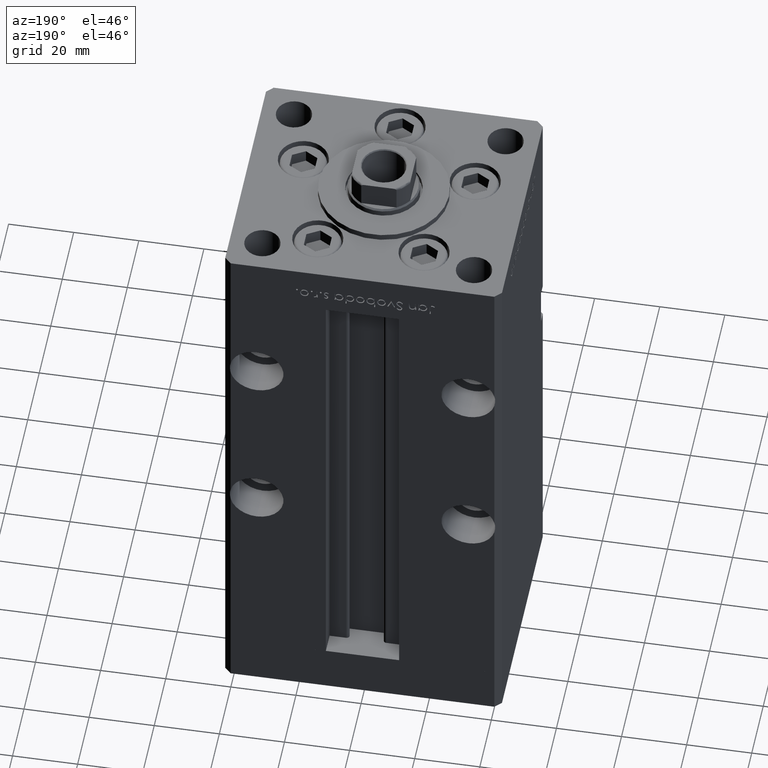
[diagram: clean part render]
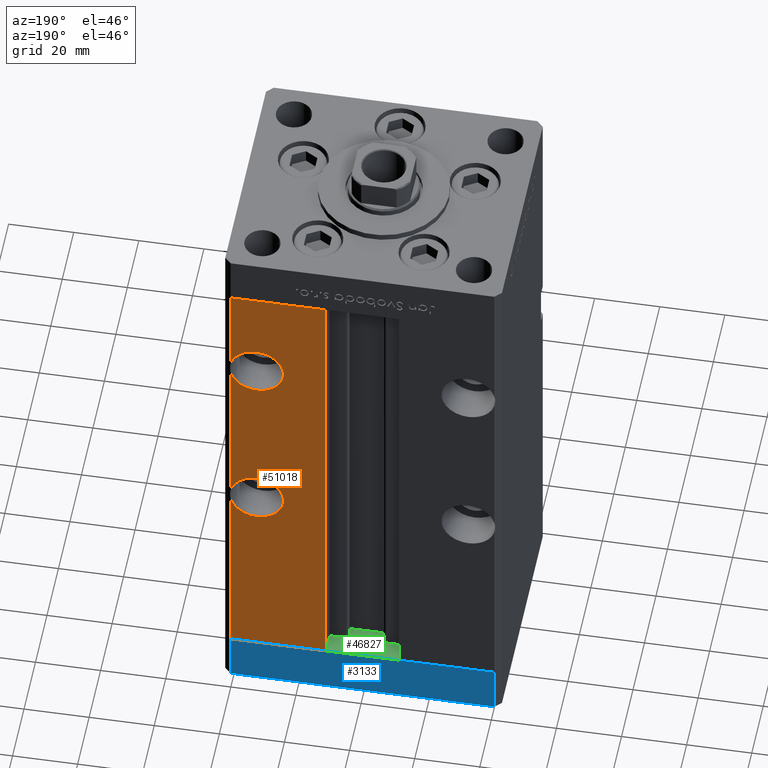
[diagram: same view with three faces highlighted in distinct colors, each labeled with its STEP entity id]
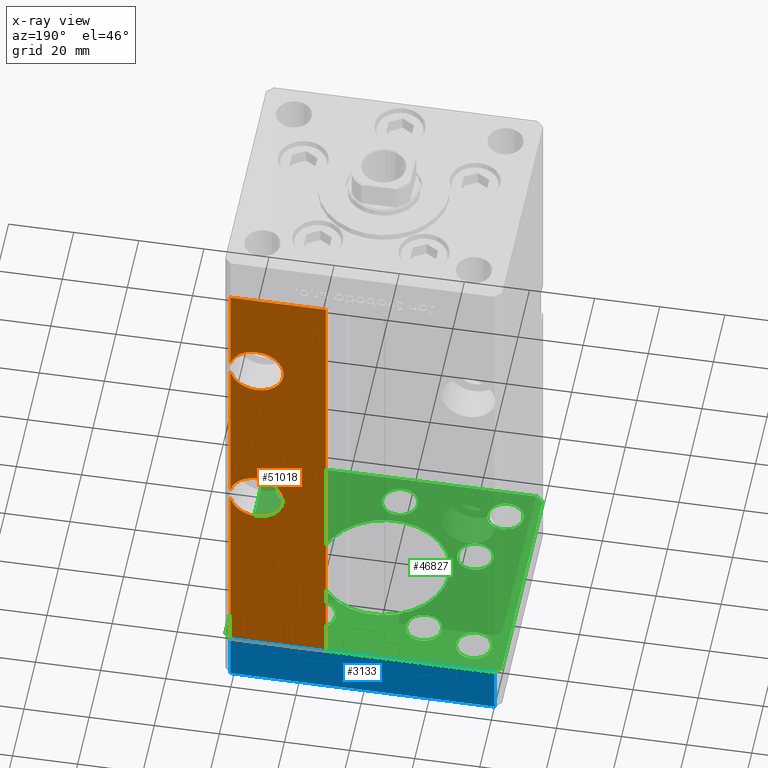
[diagram: x-ray of the same camera — body ghosted, the three highlighted faces saturated]
A machine part, auxiliary view with three faces highlighted in distinct colors.
The next image is the same camera in x-ray (body ghosted, the three faces saturated) — at least one of them is partly hidden behind the body in this view.
Their STEP definitions:

[orange] entity #51018 — the highlighted planar face has unit normal (0, -1, 0).
#1607 = DIRECTION ( 'NONE',  ( 0.000000000000000000, -0.000000000000000000, -1.000000000000000000 ) ) ;
#1616 = EDGE_CURVE ( 'NONE', #34488, #16269, #10600, .T. ) ;
#1656 = ORIENTED_EDGE ( 'NONE', *, *, #27829, .F. ) ;
#1964 = CARTESIAN_POINT ( 'NONE',  ( 40.50000000000000711, 37.50000000000000000, 60.98443556292540535 ) ) ;
#1993 = VERTEX_POINT ( 'NONE', #48486 ) ;
#2280 = ORIENTED_EDGE ( 'NONE', *, *, #48887, .F. ) ;
#2611 = DIRECTION ( 'NONE',  ( 1.000000000000000000, 0.000000000000000000, 0.000000000000000000 ) ) ;
#2662 = DIRECTION ( 'NONE',  ( -0.000000000000000000, -0.000000000000000000, -1.000000000000000000 ) ) ;
#3009 = CARTESIAN_POINT ( 'NONE',  ( 32.50000000000000000, 37.50000000000000000, 54.75000000000000711 ) ) ;
#3189 = CARTESIAN_POINT ( 'NONE',  ( 32.50000000000000000, 37.50000000000000000, 118.0000000000000000 ) ) ;
#3652 = CIRCLE ( 'NONE', #41454, 8.249999999999992895 ) ;
#4096 = EDGE_CURVE ( 'NONE', #34917, #8325, #3652, .T. ) ;
#4844 = AXIS2_PLACEMENT_3D ( 'NONE', #51999, #36623, #15118 ) ;
#4862 = ORIENTED_EDGE ( 'NONE', *, *, #52307, .F. ) ;
#5221 = VERTEX_POINT ( 'NONE', #47457 ) ;
#5895 = CARTESIAN_POINT ( 'NONE',  ( -11.24999999999999822, 37.50000000000000000, 148.5000000000000000 ) ) ;
#6428 = CARTESIAN_POINT ( 'NONE',  ( 40.50000000000000711, 37.50000000000000000, 148.5000000000000000 ) ) ;
#7078 = EDGE_CURVE ( 'NONE', #8325, #27948, #52155, .T. ) ;
#7351 = VERTEX_POINT ( 'NONE', #38757 ) ;
#8325 = VERTEX_POINT ( 'NONE', #19113 ) ;
#9359 = AXIS2_PLACEMENT_3D ( 'NONE', #3189, #19065, #44622 ) ;
#10600 = LINE ( 'NONE', #51249, #29348 ) ;
#11026 = VECTOR ( 'NONE', #12318, 1000.000000000000000 ) ;
#11588 = ORIENTED_EDGE ( 'NONE', *, *, #49183, .T. ) ;
#11980 = ORIENTED_EDGE ( 'NONE', *, *, #23678, .T. ) ;
#12318 = DIRECTION ( 'NONE',  ( -0.000000000000000000, -0.000000000000000000, -1.000000000000000000 ) ) ;
#12391 = VERTEX_POINT ( 'NONE', #15202 ) ;
#12661 = DIRECTION ( 'NONE',  ( -0.000000000000000000, -0.000000000000000000, -1.000000000000000000 ) ) ;
#14239 = PLANE ( 'NONE',  #37021 ) ;
#14517 = ORIENTED_EDGE ( 'NONE', *, *, #15682, .T. ) ;
#14680 = VECTOR ( 'NONE', #12661, 1000.000000000000000 ) ;
#15118 = DIRECTION ( 'NONE',  ( 0.000000000000000000, 0.000000000000000000, -1.000000000000000000 ) ) ;
#15202 = CARTESIAN_POINT ( 'NONE',  ( 40.50000000000000711, 37.50000000000000000, 115.9844355629253272 ) ) ;
#15424 = DIRECTION ( 'NONE',  ( 0.000000000000000000, 0.000000000000000000, -1.000000000000000000 ) ) ;
#15580 = DIRECTION ( 'NONE',  ( 0.000000000000000000, 1.000000000000000000, 0.000000000000000000 ) ) ;
#15682 = EDGE_CURVE ( 'NONE', #5221, #1993, #49191, .T. ) ;
#15780 = DIRECTION ( 'NONE',  ( 0.000000000000000000, 0.000000000000000000, 1.000000000000000000 ) ) ;
#16269 = VERTEX_POINT ( 'NONE', #42532 ) ;
#16428 = CARTESIAN_POINT ( 'NONE',  ( -11.24999999999999822, 37.50000000000000000, 0.000000000000000000 ) ) ;
#18775 = CARTESIAN_POINT ( 'NONE',  ( 32.50000000000000000, 37.50000000000000000, 126.2500000000000000 ) ) ;
#19065 = DIRECTION ( 'NONE',  ( 0.000000000000000000, 1.000000000000000000, 0.000000000000000000 ) ) ;
#19091 = DIRECTION ( 'NONE',  ( 0.000000000000000000, 0.000000000000000000, 1.000000000000000000 ) ) ;
#19113 = CARTESIAN_POINT ( 'NONE',  ( 32.50000000000000000, 37.50000000000000000, 71.25000000000000000 ) ) ;
#19711 = VECTOR ( 'NONE', #2611, 1000.000000000000000 ) ;
#19973 = AXIS2_PLACEMENT_3D ( 'NONE', #50096, #38244, #33937 ) ;
#19983 = CARTESIAN_POINT ( 'NONE',  ( 32.50000000000000000, 37.50000000000000000, 63.00000000000000000 ) ) ;
#20214 = LINE ( 'NONE', #16428, #29226 ) ;
#20841 = ORIENTED_EDGE ( 'NONE', *, *, #4096, .F. ) ;
#21614 = CIRCLE ( 'NONE', #27630, 8.250000000000007105 ) ;
#21848 = VECTOR ( 'NONE', #2662, 1000.000000000000000 ) ;
#22837 = CARTESIAN_POINT ( 'NONE',  ( 11.24999999999999822, 37.50000000000000000, 0.000000000000000000 ) ) ;
#23058 = DIRECTION ( 'NONE',  ( 0.000000000000000000, 1.000000000000000000, 0.000000000000000000 ) ) ;
#23678 = EDGE_CURVE ( 'NONE', #41555, #30754, #49542, .T. ) ;
#23849 = LINE ( 'NONE', #35445, #19711 ) ;
#27630 = AXIS2_PLACEMENT_3D ( 'NONE', #44906, #15580, #19091 ) ;
#27829 = EDGE_CURVE ( 'NONE', #41555, #34917, #44047, .T. ) ;
#27948 = VERTEX_POINT ( 'NONE', #30968 ) ;
#28560 = DIRECTION ( 'NONE',  ( -1.000000000000000000, 0.000000000000000000, 0.000000000000000000 ) ) ;
#29226 = VECTOR ( 'NONE', #28560, 1000.000000000000000 ) ;
#29348 = VECTOR ( 'NONE', #38600, 1000.000000000000000 ) ;
#29946 = VERTEX_POINT ( 'NONE', #18775 ) ;
#30343 = ORIENTED_EDGE ( 'NONE', *, *, #40951, .T. ) ;
#30754 = VERTEX_POINT ( 'NONE', #35208 ) ;
#30968 = CARTESIAN_POINT ( 'NONE',  ( 40.50000000000000711, 37.50000000000000000, 65.01556443707460176 ) ) ;
#33067 = ORIENTED_EDGE ( 'NONE', *, *, #7078, .F. ) ;
#33937 = DIRECTION ( 'NONE',  ( 0.000000000000000000, 0.000000000000000000, -1.000000000000000000 ) ) ;
#34431 = DIRECTION ( 'NONE',  ( 0.000000000000000000, -1.000000000000000000, 0.000000000000000000 ) ) ;
#34488 = VERTEX_POINT ( 'NONE', #22837 ) ;
#34917 = VERTEX_POINT ( 'NONE', #3009 ) ;
#35208 = CARTESIAN_POINT ( 'NONE',  ( 40.50000000000000711, 37.50000000000000000, 0.000000000000000000 ) ) ;
#35445 = CARTESIAN_POINT ( 'NONE',  ( -11.24999999999999822, 37.50000000000000000, 148.5000000000000000 ) ) ;
#36412 = DIRECTION ( 'NONE',  ( 0.000000000000000000, 1.000000000000000000, -0.000000000000000000 ) ) ;
#36623 = DIRECTION ( 'NONE',  ( 0.000000000000000000, 1.000000000000000000, -0.000000000000000000 ) ) ;
#36897 = CARTESIAN_POINT ( 'NONE',  ( 40.50000000000000711, 37.50000000000000000, 148.5000000000000000 ) ) ;
#37021 = AXIS2_PLACEMENT_3D ( 'NONE', #5895, #34431, #1607 ) ;
#37558 = EDGE_CURVE ( 'NONE', #12391, #27948, #43316, .T. ) ;
#38206 = FACE_OUTER_BOUND ( 'NONE', #45816, .T. ) ;
#38244 = DIRECTION ( 'NONE',  ( 0.000000000000000000, 1.000000000000000000, -0.000000000000000000 ) ) ;
#38600 = DIRECTION ( 'NONE',  ( -0.000000000000000000, -0.000000000000000000, 1.000000000000000000 ) ) ;
#38757 = CARTESIAN_POINT ( 'NONE',  ( 32.50000000000000000, 37.50000000000000000, 109.7499999999999858 ) ) ;
#40406 = ORIENTED_EDGE ( 'NONE', *, *, #1616, .T. ) ;
#40951 = EDGE_CURVE ( 'NONE', #16269, #5221, #23849, .T. ) ;
#41454 = AXIS2_PLACEMENT_3D ( 'NONE', #19983, #36412, #15424 ) ;
#41555 = VERTEX_POINT ( 'NONE', #1964 ) ;
#42532 = CARTESIAN_POINT ( 'NONE',  ( 11.24999999999999112, 37.50000000000000000, 148.5000000000000000 ) ) ;
#42659 = ORIENTED_EDGE ( 'NONE', *, *, #37558, .T. ) ;
#42917 = CIRCLE ( 'NONE', #9359, 8.250000000000007105 ) ;
#43316 = LINE ( 'NONE', #6428, #21848 ) ;
#43601 = ORIENTED_EDGE ( 'NONE', *, *, #45570, .F. ) ;
#43793 = CARTESIAN_POINT ( 'NONE',  ( 32.50000000000000000, 37.50000000000000000, 118.0000000000000000 ) ) ;
#44047 = CIRCLE ( 'NONE', #19973, 8.249999999999992895 ) ;
#44622 = DIRECTION ( 'NONE',  ( 0.000000000000000000, 0.000000000000000000, 1.000000000000000000 ) ) ;
#44906 = CARTESIAN_POINT ( 'NONE',  ( 32.50000000000000000, 37.50000000000000000, 118.0000000000000000 ) ) ;
#45570 = EDGE_CURVE ( 'NONE', #7351, #29946, #42917, .T. ) ;
#45816 = EDGE_LOOP ( 'NONE', ( #42659, #33067, #20841, #1656, #11980, #11588, #40406, #30343, #14517, #4862, #43601, #2280 ) ) ;
#46409 = AXIS2_PLACEMENT_3D ( 'NONE', #43793, #23058, #15780 ) ;
#47457 = CARTESIAN_POINT ( 'NONE',  ( 40.50000000000000711, 37.50000000000000000, 148.5000000000000000 ) ) ;
#48486 = CARTESIAN_POINT ( 'NONE',  ( 40.50000000000000711, 37.50000000000000000, 120.0155644370746586 ) ) ;
#48887 = EDGE_CURVE ( 'NONE', #12391, #7351, #50705, .T. ) ;
#49183 = EDGE_CURVE ( 'NONE', #30754, #34488, #20214, .T. ) ;
#49191 = LINE ( 'NONE', #53214, #11026 ) ;
#49542 = LINE ( 'NONE', #36897, #14680 ) ;
#50096 = CARTESIAN_POINT ( 'NONE',  ( 32.50000000000000000, 37.50000000000000000, 63.00000000000000000 ) ) ;
#50705 = CIRCLE ( 'NONE', #46409, 8.250000000000007105 ) ;
#51018 = ADVANCED_FACE ( 'NONE', ( #38206 ), #14239, .F. ) ;
#51249 = CARTESIAN_POINT ( 'NONE',  ( 11.24999999999999822, 37.50000000000000000, 0.000000000000000000 ) ) ;
#51999 = CARTESIAN_POINT ( 'NONE',  ( 32.50000000000000000, 37.50000000000000000, 63.00000000000000000 ) ) ;
#52155 = CIRCLE ( 'NONE', #4844, 8.249999999999992895 ) ;
#52307 = EDGE_CURVE ( 'NONE', #29946, #1993, #21614, .T. ) ;
#53214 = CARTESIAN_POINT ( 'NONE',  ( 40.50000000000000711, 37.50000000000000000, 148.5000000000000000 ) ) ;

[blue] entity #3133 — the highlighted planar face has unit normal (-0, 1, 0).
#234 = AXIS2_PLACEMENT_3D ( 'NONE', #48265, #39658, #11386 ) ;
#3133 = ADVANCED_FACE ( 'NONE', ( #23229 ), #19195, .T. ) ;
#3893 = DIRECTION ( 'NONE',  ( 0.000000000000000000, 0.000000000000000000, 1.000000000000000000 ) ) ;
#4996 = VECTOR ( 'NONE', #3893, 1000.000000000000000 ) ;
#5206 = LINE ( 'NONE', #13283, #49791 ) ;
#7581 = VERTEX_POINT ( 'NONE', #26043 ) ;
#8141 = LINE ( 'NONE', #32372, #32672 ) ;
#8595 = DIRECTION ( 'NONE',  ( 0.000000000000000000, 0.000000000000000000, 1.000000000000000000 ) ) ;
#11386 = DIRECTION ( 'NONE',  ( -1.000000000000000000, -3.426614273534436165E-16, 0.000000000000000000 ) ) ;
#11670 = CARTESIAN_POINT ( 'NONE',  ( -40.50000000000000711, 37.49999999999997868, -15.00000000000000000 ) ) ;
#12468 = EDGE_CURVE ( 'NONE', #30735, #14493, #44020, .T. ) ;
#13283 = CARTESIAN_POINT ( 'NONE',  ( 40.49999999999991473, 37.50000000000000711, 0.000000000000000000 ) ) ;
#14493 = VERTEX_POINT ( 'NONE', #50801 ) ;
#18964 = EDGE_CURVE ( 'NONE', #14493, #7581, #5206, .T. ) ;
#19195 = PLANE ( 'NONE',  #234 ) ;
#20187 = LINE ( 'NONE', #48984, #31242 ) ;
#22958 = ORIENTED_EDGE ( 'NONE', *, *, #50524, .T. ) ;
#23229 = FACE_OUTER_BOUND ( 'NONE', #40907, .T. ) ;
#24076 = CARTESIAN_POINT ( 'NONE',  ( 40.49999999999991473, 37.50000000000000711, -15.00000000000000000 ) ) ;
#26043 = CARTESIAN_POINT ( 'NONE',  ( -40.50000000000000711, 37.49999999999997868, 0.000000000000000000 ) ) ;
#30735 = VERTEX_POINT ( 'NONE', #51095 ) ;
#31242 = VECTOR ( 'NONE', #8595, 1000.000000000000000 ) ;
#32372 = CARTESIAN_POINT ( 'NONE',  ( 40.49999999999991473, 37.50000000000000711, -15.00000000000000000 ) ) ;
#32430 = ORIENTED_EDGE ( 'NONE', *, *, #18964, .F. ) ;
#32672 = VECTOR ( 'NONE', #40732, 1000.000000000000000 ) ;
#35034 = EDGE_CURVE ( 'NONE', #39056, #7581, #20187, .T. ) ;
#36709 = DIRECTION ( 'NONE',  ( -1.000000000000000000, -3.426614273534436165E-16, 0.000000000000000000 ) ) ;
#39056 = VERTEX_POINT ( 'NONE', #11670 ) ;
#39658 = DIRECTION ( 'NONE',  ( -3.426614273534436165E-16, 1.000000000000000000, 0.000000000000000000 ) ) ;
#40732 = DIRECTION ( 'NONE',  ( -1.000000000000000000, -3.426614273534436165E-16, 0.000000000000000000 ) ) ;
#40907 = EDGE_LOOP ( 'NONE', ( #32430, #42058, #22958, #50181 ) ) ;
#42058 = ORIENTED_EDGE ( 'NONE', *, *, #12468, .F. ) ;
#44020 = LINE ( 'NONE', #24076, #4996 ) ;
#48265 = CARTESIAN_POINT ( 'NONE',  ( 40.49999999999991473, 37.50000000000000711, -15.00000000000000000 ) ) ;
#48984 = CARTESIAN_POINT ( 'NONE',  ( -40.50000000000000711, 37.49999999999997868, -15.00000000000000000 ) ) ;
#49791 = VECTOR ( 'NONE', #36709, 1000.000000000000000 ) ;
#50181 = ORIENTED_EDGE ( 'NONE', *, *, #35034, .T. ) ;
#50524 = EDGE_CURVE ( 'NONE', #30735, #39056, #8141, .T. ) ;
#50801 = CARTESIAN_POINT ( 'NONE',  ( 40.49999999999991473, 37.50000000000000711, 0.000000000000000000 ) ) ;
#51095 = CARTESIAN_POINT ( 'NONE',  ( 40.49999999999991473, 37.50000000000000711, -15.00000000000000000 ) ) ;

[green] entity #46827 — the highlighted planar face has unit normal (0, 0, -1).
#145 = DIRECTION ( 'NONE',  ( 1.000000000000000000, 0.000000000000000000, 0.000000000000000000 ) ) ;
#673 = FACE_BOUND ( 'NONE', #37257, .T. ) ;
#903 = CARTESIAN_POINT ( 'NONE',  ( -26.39865316429776954, -9.333333333333337478, -15.00000000000000000 ) ) ;
#950 = EDGE_CURVE ( 'NONE', #20173, #20152, #10440, .T. ) ;
#1499 = CARTESIAN_POINT ( 'NONE',  ( 20.89865316429777309, -9.333333333333330373, -15.00000000000000000 ) ) ;
#2133 = VERTEX_POINT ( 'NONE', #15834 ) ;
#2235 = ORIENTED_EDGE ( 'NONE', *, *, #23813, .F. ) ;
#3026 = ORIENTED_EDGE ( 'NONE', *, *, #20070, .F. ) ;
#3062 = LINE ( 'NONE', #48269, #17146 ) ;
#3464 = LINE ( 'NONE', #19608, #40390 ) ;
#3593 = DIRECTION ( 'NONE',  ( 0.000000000000000000, -0.000000000000000000, -1.000000000000000000 ) ) ;
#3710 = CARTESIAN_POINT ( 'NONE',  ( 31.89865316429776954, -9.333333333333330373, -15.00000000000000000 ) ) ;
#3773 = DIRECTION ( 'NONE',  ( 0.7071067811865474617, 0.7071067811865474617, 0.000000000000000000 ) ) ;
#4163 = FACE_OUTER_BOUND ( 'NONE', #35440, .T. ) ;
#4370 = CIRCLE ( 'NONE', #50792, 5.499999999999998224 ) ;
#4504 = DIRECTION ( 'NONE',  ( 1.000000000000000000, 0.000000000000000000, 0.000000000000000000 ) ) ;
#4536 = DIRECTION ( 'NONE',  ( 1.000000000000000000, 0.000000000000000000, 0.000000000000000000 ) ) ;
#4605 = CIRCLE ( 'NONE', #39010, 20.00000000000000000 ) ;
#5029 = CARTESIAN_POINT ( 'NONE',  ( 0.000000000000000000, 0.000000000000000000, -15.00000000000000000 ) ) ;
#5696 = ORIENTED_EDGE ( 'NONE', *, *, #41427, .F. ) ;
#5768 = AXIS2_PLACEMENT_3D ( 'NONE', #16436, #40948, #50089 ) ;
#5856 = DIRECTION ( 'NONE',  ( 1.000000000000000000, 0.000000000000000000, 0.000000000000000000 ) ) ;
#6337 = DIRECTION ( 'NONE',  ( -0.000000000000000000, -0.000000000000000000, -1.000000000000000000 ) ) ;
#6720 = DIRECTION ( 'NONE',  ( 1.000000000000000000, 0.000000000000000000, 0.000000000000000000 ) ) ;
#6737 = CARTESIAN_POINT ( 'NONE',  ( 38.00000000000000000, 27.49999999999999645, -15.00000000000000000 ) ) ;
#7099 = ORIENTED_EDGE ( 'NONE', *, *, #8158, .F. ) ;
#7444 = DIRECTION ( 'NONE',  ( 1.000000000000000000, 0.000000000000000000, 0.000000000000000000 ) ) ;
#7461 = CIRCLE ( 'NONE', #5768, 5.499999999999998224 ) ;
#7498 = AXIS2_PLACEMENT_3D ( 'NONE', #13263, #50147, #45571 ) ;
#7503 = DIRECTION ( 'NONE',  ( 1.000000000000000000, 0.000000000000000000, 0.000000000000000000 ) ) ;
#7704 = DIRECTION ( 'NONE',  ( 0.000000000000000000, -0.000000000000000000, -1.000000000000000000 ) ) ;
#7874 = DIRECTION ( 'NONE',  ( 1.000000000000000000, 0.000000000000000000, 0.000000000000000000 ) ) ;
#7958 = CARTESIAN_POINT ( 'NONE',  ( -40.49999999999999289, -37.50000000000002132, -15.00000000000000000 ) ) ;
#8041 = CARTESIAN_POINT ( 'NONE',  ( -5.499999999999996447, -28.00000000000000000, -15.00000000000000000 ) ) ;
#8141 = LINE ( 'NONE', #32372, #32672 ) ;
#8158 = EDGE_CURVE ( 'NONE', #9815, #33764, #7461, .T. ) ;
#8689 = DIRECTION ( 'NONE',  ( 0.000000000000000000, 0.000000000000000000, 1.000000000000000000 ) ) ;
#8734 = FACE_BOUND ( 'NONE', #17304, .T. ) ;
#8833 = CARTESIAN_POINT ( 'NONE',  ( -42.50000000000000711, 35.49999999999997158, -15.00000000000000000 ) ) ;
#9604 = CARTESIAN_POINT ( 'NONE',  ( -31.89865316429776954, -9.333333333333337478, -15.00000000000000000 ) ) ;
#9815 = VERTEX_POINT ( 'NONE', #25873 ) ;
#9964 = EDGE_CURVE ( 'NONE', #19427, #49992, #40121, .T. ) ;
#10077 = ORIENTED_EDGE ( 'NONE', *, *, #11272, .F. ) ;
#10284 = AXIS2_PLACEMENT_3D ( 'NONE', #37005, #33492, #145 ) ;
#10379 = ORIENTED_EDGE ( 'NONE', *, *, #35396, .F. ) ;
#10431 = CIRCLE ( 'NONE', #41368, 5.499999999999998224 ) ;
#10440 = CIRCLE ( 'NONE', #43966, 5.499999999999998224 ) ;
#10638 = CARTESIAN_POINT ( 'NONE',  ( -32.50000000000000000, -27.49999999999999645, -15.00000000000000000 ) ) ;
#10772 = CARTESIAN_POINT ( 'NONE',  ( 40.50000000000000000, -37.50000000000000711, -15.00000000000000000 ) ) ;
#10804 = ORIENTED_EDGE ( 'NONE', *, *, #26960, .F. ) ;
#10811 = EDGE_LOOP ( 'NONE', ( #10077, #11339 ) ) ;
#10894 = DIRECTION ( 'NONE',  ( -1.000000000000000000, 0.000000000000000000, 0.000000000000000000 ) ) ;
#11057 = VERTEX_POINT ( 'NONE', #8041 ) ;
#11272 = EDGE_CURVE ( 'NONE', #15235, #11057, #45376, .T. ) ;
#11339 = ORIENTED_EDGE ( 'NONE', *, *, #52778, .F. ) ;
#11344 = VERTEX_POINT ( 'NONE', #48635 ) ;
#11390 = DIRECTION ( 'NONE',  ( -0.7071067811865463515, -0.7071067811865487940, 0.000000000000000000 ) ) ;
#11437 = DIRECTION ( 'NONE',  ( 1.000000000000000000, 1.713307136767217096E-16, 0.000000000000000000 ) ) ;
#11670 = CARTESIAN_POINT ( 'NONE',  ( -40.50000000000000711, 37.49999999999997868, -15.00000000000000000 ) ) ;
#11686 = CARTESIAN_POINT ( 'NONE',  ( 42.50000000000000711, -35.50000000000000000, -15.00000000000000000 ) ) ;
#11739 = EDGE_CURVE ( 'NONE', #36446, #19427, #36196, .T. ) ;
#11766 = VERTEX_POINT ( 'NONE', #17307 ) ;
#11904 = DIRECTION ( 'NONE',  ( 1.000000000000000000, 0.000000000000000000, 0.000000000000000000 ) ) ;
#12149 = CARTESIAN_POINT ( 'NONE',  ( 16.32291334290542295, 22.75000000000000000, -15.00000000000000000 ) ) ;
#12197 = CARTESIAN_POINT ( 'NONE',  ( -42.50000000000000711, 35.49999999999997158, -15.00000000000000000 ) ) ;
#12239 = CIRCLE ( 'NONE', #26012, 5.499999999999998224 ) ;
#12489 = VERTEX_POINT ( 'NONE', #40775 ) ;
#12749 = EDGE_LOOP ( 'NONE', ( #10379, #24680 ) ) ;
#12780 = DIRECTION ( 'NONE',  ( 1.000000000000000000, 0.000000000000000000, 0.000000000000000000 ) ) ;
#12950 = VERTEX_POINT ( 'NONE', #13482 ) ;
#13263 = CARTESIAN_POINT ( 'NONE',  ( 26.39865316429776954, -9.333333333333330373, -15.00000000000000000 ) ) ;
#13372 = DIRECTION ( 'NONE',  ( 0.000000000000000000, -0.000000000000000000, -1.000000000000000000 ) ) ;
#13482 = CARTESIAN_POINT ( 'NONE',  ( -27.00000000000000355, 27.50000000000000355, -15.00000000000000000 ) ) ;
#13884 = EDGE_CURVE ( 'NONE', #14834, #25570, #37570, .T. ) ;
#14265 = DIRECTION ( 'NONE',  ( 0.000000000000000000, 0.000000000000000000, 1.000000000000000000 ) ) ;
#14341 = EDGE_LOOP ( 'NONE', ( #3026, #5696 ) ) ;
#14406 = CIRCLE ( 'NONE', #50521, 5.500000000000000000 ) ;
#14631 = VERTEX_POINT ( 'NONE', #48100 ) ;
#14834 = VERTEX_POINT ( 'NONE', #1499 ) ;
#15077 = DIRECTION ( 'NONE',  ( 0.000000000000000000, -0.000000000000000000, -1.000000000000000000 ) ) ;
#15124 = EDGE_CURVE ( 'NONE', #11344, #12489, #14406, .T. ) ;
#15235 = VERTEX_POINT ( 'NONE', #36064 ) ;
#15412 = AXIS2_PLACEMENT_3D ( 'NONE', #40997, #32389, #20793 ) ;
#15523 = AXIS2_PLACEMENT_3D ( 'NONE', #24577, #8689, #20527 ) ;
#15834 = CARTESIAN_POINT ( 'NONE',  ( 42.49999999999992895, 35.50000000000000000, -15.00000000000000000 ) ) ;
#15854 = VERTEX_POINT ( 'NONE', #9604 ) ;
#15946 = VERTEX_POINT ( 'NONE', #40214 ) ;
#16423 = AXIS2_PLACEMENT_3D ( 'NONE', #52479, #15077, #31493 ) ;
#16436 = CARTESIAN_POINT ( 'NONE',  ( 32.50000000000000000, -27.49999999999999645, -15.00000000000000000 ) ) ;
#16757 = CARTESIAN_POINT ( 'NONE',  ( -26.39865316429776954, -9.333333333333337478, -15.00000000000000000 ) ) ;
#17082 = DIRECTION ( 'NONE',  ( 0.000000000000000000, -0.000000000000000000, -1.000000000000000000 ) ) ;
#17146 = VECTOR ( 'NONE', #11390, 1000.000000000000000 ) ;
#17304 = EDGE_LOOP ( 'NONE', ( #37555, #19778 ) ) ;
#17307 = CARTESIAN_POINT ( 'NONE',  ( -38.00000000000000000, -27.49999999999999645, -15.00000000000000000 ) ) ;
#17471 = VERTEX_POINT ( 'NONE', #48881 ) ;
#17594 = ORIENTED_EDGE ( 'NONE', *, *, #44235, .F. ) ;
#17759 = CARTESIAN_POINT ( 'NONE',  ( 32.50000000000000000, 27.49999999999999645, -15.00000000000000000 ) ) ;
#18138 = EDGE_LOOP ( 'NONE', ( #28713, #33087 ) ) ;
#18310 = EDGE_CURVE ( 'NONE', #25570, #14834, #34308, .T. ) ;
#18393 = EDGE_CURVE ( 'NONE', #42185, #42581, #50014, .T. ) ;
#18504 = CARTESIAN_POINT ( 'NONE',  ( -42.50000000000000000, -35.50000000000000711, -15.00000000000000000 ) ) ;
#19134 = VECTOR ( 'NONE', #20150, 1000.000000000000114 ) ;
#19427 = VERTEX_POINT ( 'NONE', #10772 ) ;
#19506 = CARTESIAN_POINT ( 'NONE',  ( -40.49999999999999289, -37.50000000000002132, -15.00000000000000000 ) ) ;
#19608 = CARTESIAN_POINT ( 'NONE',  ( 42.50000000000000711, -35.50000000000000000, -15.00000000000000000 ) ) ;
#19697 = CARTESIAN_POINT ( 'NONE',  ( -20.00000000000000000, 2.449293598294706513E-15, -15.00000000000000000 ) ) ;
#19778 = ORIENTED_EDGE ( 'NONE', *, *, #52401, .T. ) ;
#20070 = EDGE_CURVE ( 'NONE', #40544, #14631, #52416, .T. ) ;
#20150 = DIRECTION ( 'NONE',  ( -0.7071067811865474617, 0.7071067811865474617, 0.000000000000000000 ) ) ;
#20152 = VERTEX_POINT ( 'NONE', #6737 ) ;
#20173 = VERTEX_POINT ( 'NONE', #36078 ) ;
#20527 = DIRECTION ( 'NONE',  ( 1.000000000000000000, 0.000000000000000000, 0.000000000000000000 ) ) ;
#20793 = DIRECTION ( 'NONE',  ( 1.000000000000000000, 0.000000000000000000, 0.000000000000000000 ) ) ;
#21110 = FACE_BOUND ( 'NONE', #49691, .T. ) ;
#21272 = CARTESIAN_POINT ( 'NONE',  ( -16.32291334290543006, 22.74999999999999645, -15.00000000000000000 ) ) ;
#21374 = PLANE ( 'NONE',  #10284 ) ;
#21662 = CIRCLE ( 'NONE', #34543, 5.499999999999998224 ) ;
#21741 = DIRECTION ( 'NONE',  ( 0.000000000000000000, -0.000000000000000000, -1.000000000000000000 ) ) ;
#22000 = DIRECTION ( 'NONE',  ( 0.000000000000000000, -0.000000000000000000, -1.000000000000000000 ) ) ;
#22278 = VECTOR ( 'NONE', #33058, 1000.000000000000000 ) ;
#22514 = EDGE_CURVE ( 'NONE', #28416, #15854, #29272, .T. ) ;
#22543 = LINE ( 'NONE', #18504, #43880 ) ;
#22605 = EDGE_CURVE ( 'NONE', #12950, #37051, #38733, .T. ) ;
#23492 = ORIENTED_EDGE ( 'NONE', *, *, #50524, .F. ) ;
#23746 = DIRECTION ( 'NONE',  ( -0.000000000000000000, -0.000000000000000000, -1.000000000000000000 ) ) ;
#23813 = EDGE_CURVE ( 'NONE', #17471, #11766, #4370, .T. ) ;
#24577 = CARTESIAN_POINT ( 'NONE',  ( -32.50000000000000000, 27.50000000000000355, -15.00000000000000000 ) ) ;
#24680 = ORIENTED_EDGE ( 'NONE', *, *, #29767, .F. ) ;
#24887 = FACE_BOUND ( 'NONE', #10811, .T. ) ;
#25165 = FACE_BOUND ( 'NONE', #42977, .T. ) ;
#25570 = VERTEX_POINT ( 'NONE', #3710 ) ;
#25873 = CARTESIAN_POINT ( 'NONE',  ( 38.00000000000000000, -27.49999999999999645, -15.00000000000000000 ) ) ;
#26012 = AXIS2_PLACEMENT_3D ( 'NONE', #36135, #23746, #44733 ) ;
#26630 = AXIS2_PLACEMENT_3D ( 'NONE', #12149, #50103, #37983 ) ;
#26778 = AXIS2_PLACEMENT_3D ( 'NONE', #33239, #17082, #12780 ) ;
#26960 = EDGE_CURVE ( 'NONE', #11766, #17471, #21662, .T. ) ;
#27830 = CARTESIAN_POINT ( 'NONE',  ( -16.32291334290543006, 22.74999999999999645, -15.00000000000000000 ) ) ;
#28394 = AXIS2_PLACEMENT_3D ( 'NONE', #16757, #37491, #49877 ) ;
#28416 = VERTEX_POINT ( 'NONE', #51559 ) ;
#28713 = ORIENTED_EDGE ( 'NONE', *, *, #33043, .T. ) ;
#29081 = VECTOR ( 'NONE', #11437, 1000.000000000000000 ) ;
#29183 = ORIENTED_EDGE ( 'NONE', *, *, #13884, .F. ) ;
#29272 = CIRCLE ( 'NONE', #28394, 5.499999999999998224 ) ;
#29464 = EDGE_CURVE ( 'NONE', #33764, #9815, #12239, .T. ) ;
#29767 = EDGE_CURVE ( 'NONE', #32846, #15946, #39663, .T. ) ;
#30735 = VERTEX_POINT ( 'NONE', #51095 ) ;
#31166 = AXIS2_PLACEMENT_3D ( 'NONE', #17759, #14265, #38769 ) ;
#31353 = ORIENTED_EDGE ( 'NONE', *, *, #22514, .F. ) ;
#31493 = DIRECTION ( 'NONE',  ( 1.000000000000000000, 0.000000000000000000, 0.000000000000000000 ) ) ;
#31721 = DIRECTION ( 'NONE',  ( -1.172770800660376741E-15, 1.000000000000000000, 0.000000000000000000 ) ) ;
#32372 = CARTESIAN_POINT ( 'NONE',  ( 40.49999999999991473, 37.50000000000000711, -15.00000000000000000 ) ) ;
#32389 = DIRECTION ( 'NONE',  ( 0.000000000000000000, -0.000000000000000000, -1.000000000000000000 ) ) ;
#32466 = ORIENTED_EDGE ( 'NONE', *, *, #18310, .F. ) ;
#32604 = EDGE_CURVE ( 'NONE', #15854, #28416, #43231, .T. ) ;
#32672 = VECTOR ( 'NONE', #40732, 1000.000000000000000 ) ;
#32846 = VERTEX_POINT ( 'NONE', #19697 ) ;
#32864 = AXIS2_PLACEMENT_3D ( 'NONE', #903, #7704, #7444 ) ;
#33043 = EDGE_CURVE ( 'NONE', #20152, #20173, #40620, .T. ) ;
#33058 = DIRECTION ( 'NONE',  ( 9.773090005503140331E-17, -1.000000000000000000, 0.000000000000000000 ) ) ;
#33087 = ORIENTED_EDGE ( 'NONE', *, *, #950, .T. ) ;
#33221 = FACE_BOUND ( 'NONE', #14341, .T. ) ;
#33239 = CARTESIAN_POINT ( 'NONE',  ( 3.429011037612589276E-15, -28.00000000000000000, -15.00000000000000000 ) ) ;
#33250 = EDGE_CURVE ( 'NONE', #2133, #30735, #47650, .T. ) ;
#33408 = AXIS2_PLACEMENT_3D ( 'NONE', #27830, #3593, #11904 ) ;
#33492 = DIRECTION ( 'NONE',  ( -0.000000000000000000, 0.000000000000000000, 1.000000000000000000 ) ) ;
#33764 = VERTEX_POINT ( 'NONE', #42151 ) ;
#33977 = ORIENTED_EDGE ( 'NONE', *, *, #18393, .F. ) ;
#34139 = ORIENTED_EDGE ( 'NONE', *, *, #43234, .F. ) ;
#34308 = CIRCLE ( 'NONE', #36872, 5.499999999999998224 ) ;
#34412 = EDGE_LOOP ( 'NONE', ( #31353, #37474 ) ) ;
#34543 = AXIS2_PLACEMENT_3D ( 'NONE', #35328, #43412, #43143 ) ;
#34924 = DIRECTION ( 'NONE',  ( 0.7071067811865463515, -0.7071067811865487940, 0.000000000000000000 ) ) ;
#34988 = DIRECTION ( 'NONE',  ( 0.000000000000000000, -0.000000000000000000, -1.000000000000000000 ) ) ;
#35328 = CARTESIAN_POINT ( 'NONE',  ( -32.50000000000000000, -27.49999999999999645, -15.00000000000000000 ) ) ;
#35396 = EDGE_CURVE ( 'NONE', #15946, #32846, #4605, .T. ) ;
#35440 = EDGE_LOOP ( 'NONE', ( #51891, #33977, #34139, #23492, #37283, #38808, #35964, #39563 ) ) ;
#35809 = CARTESIAN_POINT ( 'NONE',  ( 40.50000000000000000, -37.50000000000000711, -15.00000000000000000 ) ) ;
#35936 = AXIS2_PLACEMENT_3D ( 'NONE', #46511, #22000, #5856 ) ;
#35964 = ORIENTED_EDGE ( 'NONE', *, *, #9964, .F. ) ;
#36048 = CARTESIAN_POINT ( 'NONE',  ( -32.50000000000000000, 27.50000000000000355, -15.00000000000000000 ) ) ;
#36064 = CARTESIAN_POINT ( 'NONE',  ( 5.500000000000003553, -28.00000000000000000, -15.00000000000000000 ) ) ;
#36078 = CARTESIAN_POINT ( 'NONE',  ( 27.00000000000000355, 27.49999999999999645, -15.00000000000000000 ) ) ;
#36135 = CARTESIAN_POINT ( 'NONE',  ( 32.50000000000000000, -27.49999999999999645, -15.00000000000000000 ) ) ;
#36196 = LINE ( 'NONE', #19506, #29081 ) ;
#36446 = VERTEX_POINT ( 'NONE', #7958 ) ;
#36703 = EDGE_LOOP ( 'NONE', ( #32466, #29183 ) ) ;
#36872 = AXIS2_PLACEMENT_3D ( 'NONE', #49737, #21741, #4536 ) ;
#37005 = CARTESIAN_POINT ( 'NONE',  ( 0.000000000000000000, 0.000000000000000000, -15.00000000000000000 ) ) ;
#37051 = VERTEX_POINT ( 'NONE', #46879 ) ;
#37257 = EDGE_LOOP ( 'NONE', ( #2235, #10804 ) ) ;
#37283 = ORIENTED_EDGE ( 'NONE', *, *, #33250, .F. ) ;
#37474 = ORIENTED_EDGE ( 'NONE', *, *, #32604, .F. ) ;
#37491 = DIRECTION ( 'NONE',  ( 0.000000000000000000, -0.000000000000000000, -1.000000000000000000 ) ) ;
#37555 = ORIENTED_EDGE ( 'NONE', *, *, #22605, .T. ) ;
#37570 = CIRCLE ( 'NONE', #7498, 5.499999999999998224 ) ;
#37983 = DIRECTION ( 'NONE',  ( 1.000000000000000000, 0.000000000000000000, 0.000000000000000000 ) ) ;
#38733 = CIRCLE ( 'NONE', #15523, 5.499999999999998224 ) ;
#38769 = DIRECTION ( 'NONE',  ( 1.000000000000000000, 0.000000000000000000, 0.000000000000000000 ) ) ;
#38808 = ORIENTED_EDGE ( 'NONE', *, *, #47176, .F. ) ;
#39010 = AXIS2_PLACEMENT_3D ( 'NONE', #5029, #13372, #4504 ) ;
#39056 = VERTEX_POINT ( 'NONE', #11670 ) ;
#39368 = VECTOR ( 'NONE', #3773, 1000.000000000000114 ) ;
#39563 = ORIENTED_EDGE ( 'NONE', *, *, #11739, .F. ) ;
#39663 = CIRCLE ( 'NONE', #16423, 20.00000000000000000 ) ;
#39828 = DIRECTION ( 'NONE',  ( 0.000000000000000000, 0.000000000000000000, 1.000000000000000000 ) ) ;
#40121 = LINE ( 'NONE', #35809, #39368 ) ;
#40214 = CARTESIAN_POINT ( 'NONE',  ( 20.00000000000000000, 0.000000000000000000, -15.00000000000000000 ) ) ;
#40390 = VECTOR ( 'NONE', #31721, 1000.000000000000000 ) ;
#40461 = DIRECTION ( 'NONE',  ( 0.000000000000000000, 0.000000000000000000, 1.000000000000000000 ) ) ;
#40544 = VERTEX_POINT ( 'NONE', #51385 ) ;
#40620 = CIRCLE ( 'NONE', #31166, 5.499999999999998224 ) ;
#40732 = DIRECTION ( 'NONE',  ( -1.000000000000000000, -3.426614273534436165E-16, 0.000000000000000000 ) ) ;
#40775 = CARTESIAN_POINT ( 'NONE',  ( -21.82291334290543361, 22.74999999999999645, -15.00000000000000000 ) ) ;
#40793 = FACE_BOUND ( 'NONE', #34412, .T. ) ;
#40948 = DIRECTION ( 'NONE',  ( -0.000000000000000000, -0.000000000000000000, -1.000000000000000000 ) ) ;
#40997 = CARTESIAN_POINT ( 'NONE',  ( 16.32291334290542295, 22.75000000000000000, -15.00000000000000000 ) ) ;
#41045 = FACE_BOUND ( 'NONE', #12749, .T. ) ;
#41176 = CIRCLE ( 'NONE', #15412, 5.500000000000001776 ) ;
#41368 = AXIS2_PLACEMENT_3D ( 'NONE', #36048, #39828, #7503 ) ;
#41427 = EDGE_CURVE ( 'NONE', #14631, #40544, #41176, .T. ) ;
#41583 = ORIENTED_EDGE ( 'NONE', *, *, #15124, .F. ) ;
#41590 = FACE_BOUND ( 'NONE', #36703, .T. ) ;
#42151 = CARTESIAN_POINT ( 'NONE',  ( 27.00000000000000355, -27.49999999999999645, -15.00000000000000000 ) ) ;
#42185 = VERTEX_POINT ( 'NONE', #12197 ) ;
#42581 = VERTEX_POINT ( 'NONE', #48704 ) ;
#42977 = EDGE_LOOP ( 'NONE', ( #7099, #49778 ) ) ;
#43143 = DIRECTION ( 'NONE',  ( -1.000000000000000000, 0.000000000000000000, 0.000000000000000000 ) ) ;
#43231 = CIRCLE ( 'NONE', #32864, 5.499999999999998224 ) ;
#43234 = EDGE_CURVE ( 'NONE', #39056, #42185, #3062, .T. ) ;
#43412 = DIRECTION ( 'NONE',  ( -0.000000000000000000, -0.000000000000000000, -1.000000000000000000 ) ) ;
#43880 = VECTOR ( 'NONE', #34924, 1000.000000000000000 ) ;
#43966 = AXIS2_PLACEMENT_3D ( 'NONE', #52569, #40461, #7874 ) ;
#44235 = EDGE_CURVE ( 'NONE', #12489, #11344, #45433, .T. ) ;
#44733 = DIRECTION ( 'NONE',  ( -1.000000000000000000, 0.000000000000000000, 0.000000000000000000 ) ) ;
#45376 = CIRCLE ( 'NONE', #35936, 5.500000000000000000 ) ;
#45433 = CIRCLE ( 'NONE', #33408, 5.500000000000000000 ) ;
#45571 = DIRECTION ( 'NONE',  ( 1.000000000000000000, 0.000000000000000000, 0.000000000000000000 ) ) ;
#45617 = FACE_BOUND ( 'NONE', #18138, .T. ) ;
#45711 = CARTESIAN_POINT ( 'NONE',  ( 42.49999999999992895, 35.50000000000000000, -15.00000000000000000 ) ) ;
#46511 = CARTESIAN_POINT ( 'NONE',  ( 3.429011037612589276E-15, -28.00000000000000000, -15.00000000000000000 ) ) ;
#46827 = ADVANCED_FACE ( 'NONE', ( #41045, #40793, #24887, #41590, #33221, #21110, #45617, #8734, #4163, #25165, #673 ), #21374, .F. ) ;
#46879 = CARTESIAN_POINT ( 'NONE',  ( -38.00000000000000000, 27.50000000000000355, -15.00000000000000000 ) ) ;
#47176 = EDGE_CURVE ( 'NONE', #49992, #2133, #3464, .T. ) ;
#47650 = LINE ( 'NONE', #45711, #19134 ) ;
#48100 = CARTESIAN_POINT ( 'NONE',  ( 10.82291334290542473, 22.75000000000000000, -15.00000000000000000 ) ) ;
#48269 = CARTESIAN_POINT ( 'NONE',  ( -40.50000000000000711, 37.49999999999997868, -15.00000000000000000 ) ) ;
#48635 = CARTESIAN_POINT ( 'NONE',  ( -10.82291334290543183, 22.74999999999999645, -15.00000000000000000 ) ) ;
#48704 = CARTESIAN_POINT ( 'NONE',  ( -42.50000000000000000, -35.50000000000000711, -15.00000000000000000 ) ) ;
#48881 = CARTESIAN_POINT ( 'NONE',  ( -27.00000000000000355, -27.49999999999999645, -15.00000000000000000 ) ) ;
#49659 = EDGE_CURVE ( 'NONE', #42581, #36446, #22543, .T. ) ;
#49691 = EDGE_LOOP ( 'NONE', ( #41583, #17594 ) ) ;
#49737 = CARTESIAN_POINT ( 'NONE',  ( 26.39865316429776954, -9.333333333333330373, -15.00000000000000000 ) ) ;
#49778 = ORIENTED_EDGE ( 'NONE', *, *, #29464, .F. ) ;
#49877 = DIRECTION ( 'NONE',  ( 1.000000000000000000, 0.000000000000000000, 0.000000000000000000 ) ) ;
#49972 = CIRCLE ( 'NONE', #26778, 5.500000000000000000 ) ;
#49992 = VERTEX_POINT ( 'NONE', #11686 ) ;
#50014 = LINE ( 'NONE', #8833, #22278 ) ;
#50089 = DIRECTION ( 'NONE',  ( -1.000000000000000000, 0.000000000000000000, 0.000000000000000000 ) ) ;
#50103 = DIRECTION ( 'NONE',  ( 0.000000000000000000, -0.000000000000000000, -1.000000000000000000 ) ) ;
#50147 = DIRECTION ( 'NONE',  ( 0.000000000000000000, -0.000000000000000000, -1.000000000000000000 ) ) ;
#50521 = AXIS2_PLACEMENT_3D ( 'NONE', #21272, #34988, #6720 ) ;
#50524 = EDGE_CURVE ( 'NONE', #30735, #39056, #8141, .T. ) ;
#50792 = AXIS2_PLACEMENT_3D ( 'NONE', #10638, #6337, #10894 ) ;
#51095 = CARTESIAN_POINT ( 'NONE',  ( 40.49999999999991473, 37.50000000000000711, -15.00000000000000000 ) ) ;
#51385 = CARTESIAN_POINT ( 'NONE',  ( 21.82291334290542650, 22.75000000000000000, -15.00000000000000000 ) ) ;
#51559 = CARTESIAN_POINT ( 'NONE',  ( -20.89865316429777309, -9.333333333333337478, -15.00000000000000000 ) ) ;
#51891 = ORIENTED_EDGE ( 'NONE', *, *, #49659, .F. ) ;
#52401 = EDGE_CURVE ( 'NONE', #37051, #12950, #10431, .T. ) ;
#52416 = CIRCLE ( 'NONE', #26630, 5.500000000000001776 ) ;
#52479 = CARTESIAN_POINT ( 'NONE',  ( 0.000000000000000000, 0.000000000000000000, -15.00000000000000000 ) ) ;
#52569 = CARTESIAN_POINT ( 'NONE',  ( 32.50000000000000000, 27.49999999999999645, -15.00000000000000000 ) ) ;
#52778 = EDGE_CURVE ( 'NONE', #11057, #15235, #49972, .T. ) ;